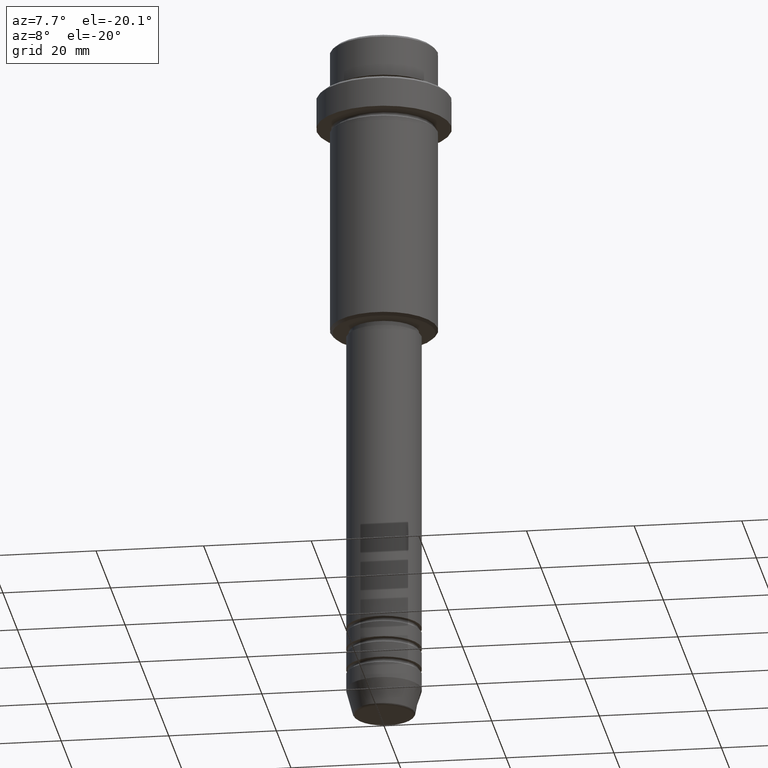
[diagram: clean part render]
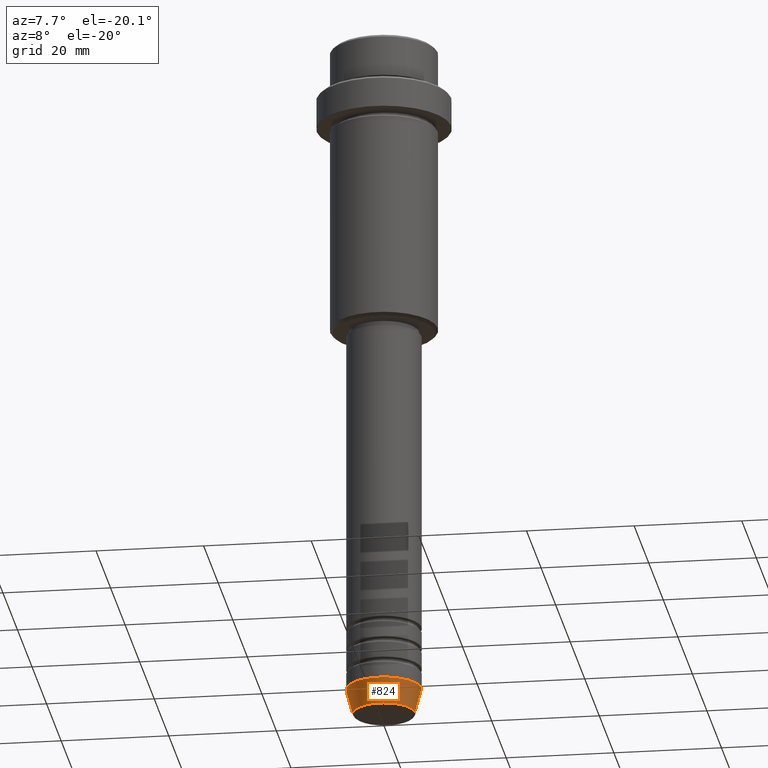
[diagram: same view with one face highlighted and labeled with its STEP entity id]
A machine part, auxiliary view. The second image highlights one B-rep face of the part: STEP entity #824.
In plain terms, the highlighted conical surface has half-angle 15 deg.
Its self-contained STEP definition (entity closure, byte-faithful):
#17 = ORIENTED_EDGE ( 'NONE', *, *, #733, .T. ) ;
#42 = CARTESIAN_POINT ( 'NONE',  ( -5.759553456999435994, 7.812973149831951773E-16, -129.6294095225512422 ) ) ;
#78 = VECTOR ( 'NONE', #727, 1000.000000000000000 ) ;
#139 = DIRECTION ( 'NONE',  ( -0.000000000000000000, -0.000000000000000000, 1.000000000000000000 ) ) ;
#147 = DIRECTION ( 'NONE',  ( -0.000000000000000000, -0.000000000000000000, 1.000000000000000000 ) ) ;
#160 = ORIENTED_EDGE ( 'NONE', *, *, #1293, .T. ) ;
#163 = ORIENTED_EDGE ( 'NONE', *, *, #286, .F. ) ;
#182 = CARTESIAN_POINT ( 'NONE',  ( 7.000000000000000000, 0.000000000000000000, -125.0000000000000000 ) ) ;
#226 = DIRECTION ( 'NONE',  ( 0.2588190451025213501, 0.000000000000000000, 0.9659258262890680902 ) ) ;
#283 = EDGE_LOOP ( 'NONE', ( #786, #160, #17, #163 ) ) ;
#286 = EDGE_CURVE ( 'NONE', #1379, #1000, #488, .T. ) ;
#416 = VERTEX_POINT ( 'NONE', #1259 ) ;
#429 = AXIS2_PLACEMENT_3D ( 'NONE', #770, #147, #1201 ) ;
#488 = CIRCLE ( 'NONE', #429, 7.000000000000000000 ) ;
#568 = DIRECTION ( 'NONE',  ( 1.000000000000000000, 0.000000000000000000, 0.000000000000000000 ) ) ;
#571 = DIRECTION ( 'NONE',  ( -0.000000000000000000, -0.000000000000000000, 1.000000000000000000 ) ) ;
#678 = AXIS2_PLACEMENT_3D ( 'NONE', #1022, #139, #568 ) ;
#727 = DIRECTION ( 'NONE',  ( -0.2588190451025213501, 3.169619151431772337E-17, 0.9659258262890680902 ) ) ;
#731 = LINE ( 'NONE', #1269, #78 ) ;
#733 = EDGE_CURVE ( 'NONE', #416, #1000, #752, .T. ) ;
#752 = LINE ( 'NONE', #1188, #1185 ) ;
#770 = CARTESIAN_POINT ( 'NONE',  ( 0.000000000000000000, 0.000000000000000000, -125.0000000000000000 ) ) ;
#786 = ORIENTED_EDGE ( 'NONE', *, *, #1357, .F. ) ;
#820 = CARTESIAN_POINT ( 'NONE',  ( -7.000000000000000000, 8.572527594031473190E-16, -125.0000000000000000 ) ) ;
#824 = ADVANCED_FACE ( 'NONE', ( #1122 ), #1354, .T. ) ;
#908 = CARTESIAN_POINT ( 'NONE',  ( 0.000000000000000000, 0.000000000000000000, -125.0000000000000000 ) ) ;
#959 = AXIS2_PLACEMENT_3D ( 'NONE', #908, #571, #1013 ) ;
#976 = CIRCLE ( 'NONE', #678, 5.759553456999435994 ) ;
#1000 = VERTEX_POINT ( 'NONE', #182 ) ;
#1013 = DIRECTION ( 'NONE',  ( 1.000000000000000000, 0.000000000000000000, 0.000000000000000000 ) ) ;
#1022 = CARTESIAN_POINT ( 'NONE',  ( 0.000000000000000000, 0.000000000000000000, -129.6294095225512422 ) ) ;
#1122 = FACE_OUTER_BOUND ( 'NONE', #283, .T. ) ;
#1185 = VECTOR ( 'NONE', #226, 1000.000000000000000 ) ;
#1188 = CARTESIAN_POINT ( 'NONE',  ( 7.000000000000000000, 0.000000000000000000, -125.0000000000000000 ) ) ;
#1189 = VERTEX_POINT ( 'NONE', #42 ) ;
#1201 = DIRECTION ( 'NONE',  ( 1.000000000000000000, 0.000000000000000000, 0.000000000000000000 ) ) ;
#1259 = CARTESIAN_POINT ( 'NONE',  ( 5.759553456999435994, 0.000000000000000000, -129.6294095225512422 ) ) ;
#1269 = CARTESIAN_POINT ( 'NONE',  ( -7.000000000000000000, 8.572527594031473190E-16, -125.0000000000000000 ) ) ;
#1293 = EDGE_CURVE ( 'NONE', #1189, #416, #976, .T. ) ;
#1354 = CONICAL_SURFACE ( 'NONE', #959, 7.000000000000000000, 0.2617993877991500740 ) ;
#1357 = EDGE_CURVE ( 'NONE', #1189, #1379, #731, .T. ) ;
#1379 = VERTEX_POINT ( 'NONE', #820 ) ;